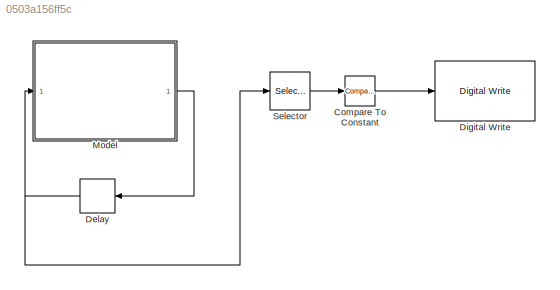
MODEL slx_0503a156ff5c
KIND model
CONFIG AbsTol = auto
CONFIG EnableMultiTasking = on
CONFIG FixedStep = 1e-3
CONFIG MaxStep = auto
CONFIG MinStep = auto
CONFIG RelTol = 1e-3
CONFIG SampleTimeConstraint = Unconstrained
CONFIG Solver = FixedStepAuto
CONFIG SolverName = FixedStepAuto
CONFIG StartTime = 0.0
CONFIG StopTime = 10.0
BLOCK [Reference] Compare To Constant  REF=simulink/Logic and Bit
Operations/Compare
To Constant
  Ports = [1, 1]
  SourceBlock = simulink/Logic and Bit\nOperations/Compare\nTo Constant
  SourceProductBaseCode = SL
  SourceType = Compare To Constant
BLOCK [Delay] Delay
  DelayLength = 1
  InitialCondition = [1000 5 10 5 10 300 400 3.5 3.5 50 0.1 16 5000 5000 1 100 1 1 1]
  InputPortMap = u0
  Ports = [1, 1]
BLOCK [Reference] Digital Write  REF=frdmk64flib/Digital Write
  Ports = [1]
  SourceBlock = frdmk64flib/Digital Write
  SourceProductBaseCode = EC_FRDM_K64F
  SourceType = freedomk64f.DigitalWrite
BLOCK [ModelReference] Model
  ModelNameDialog = ProcessSerial.slx
  ModelReferenceVersion = 1.7
  Ports = [1, 1]
BLOCK [Selector] Selector
  IndexOptions = Index vector (dialog)
  Indices = [7]
  OutputSizes = 1
  Ports = [1, 1]
LINE Compare To Constant:1 -> Digital Write:1
NET Delay:1 -> Model:1, Selector:1
LINE Model:1 -> Delay:1
LINE Selector:1 -> Compare To Constant:1
note: NET lines group one-source signal fan-out (src -> all destinations, sorted); 1:1 wires keep LINE
